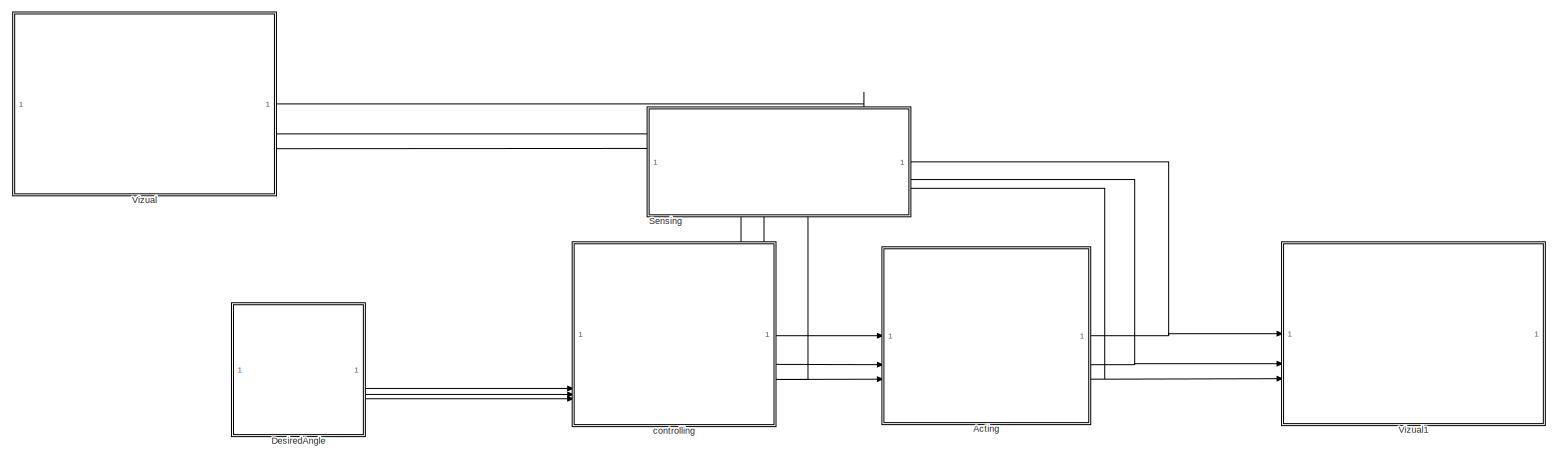
[diagram: root canvas - part 1/1, most of the canvas]
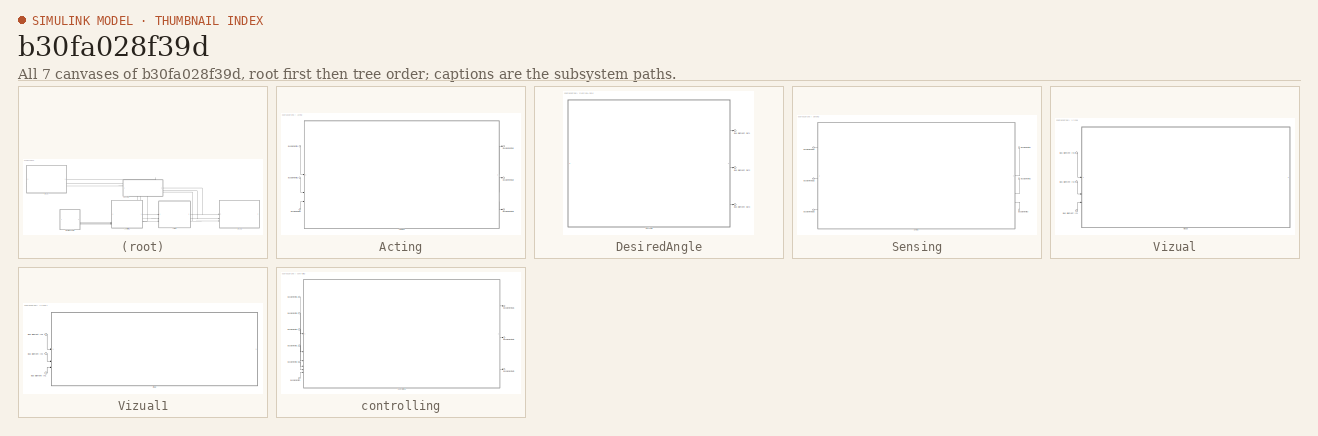
[diagram: thumbnail index - all 7 canvases of the model, root first then tree order]
MODEL slx_b30fa028f39d
KIND model
CONFIG AbsTol = auto
CONFIG EnableMultiTasking = off
CONFIG FixedStep = auto
CONFIG MaxStep = auto
CONFIG MinStep = auto
CONFIG RelTol = 1e-3
CONFIG SampleTimeConstraint = Unconstrained
CONFIG SolverName = VariableStepAuto
CONFIG StartTime = 0.0
CONFIG StopTime = 10
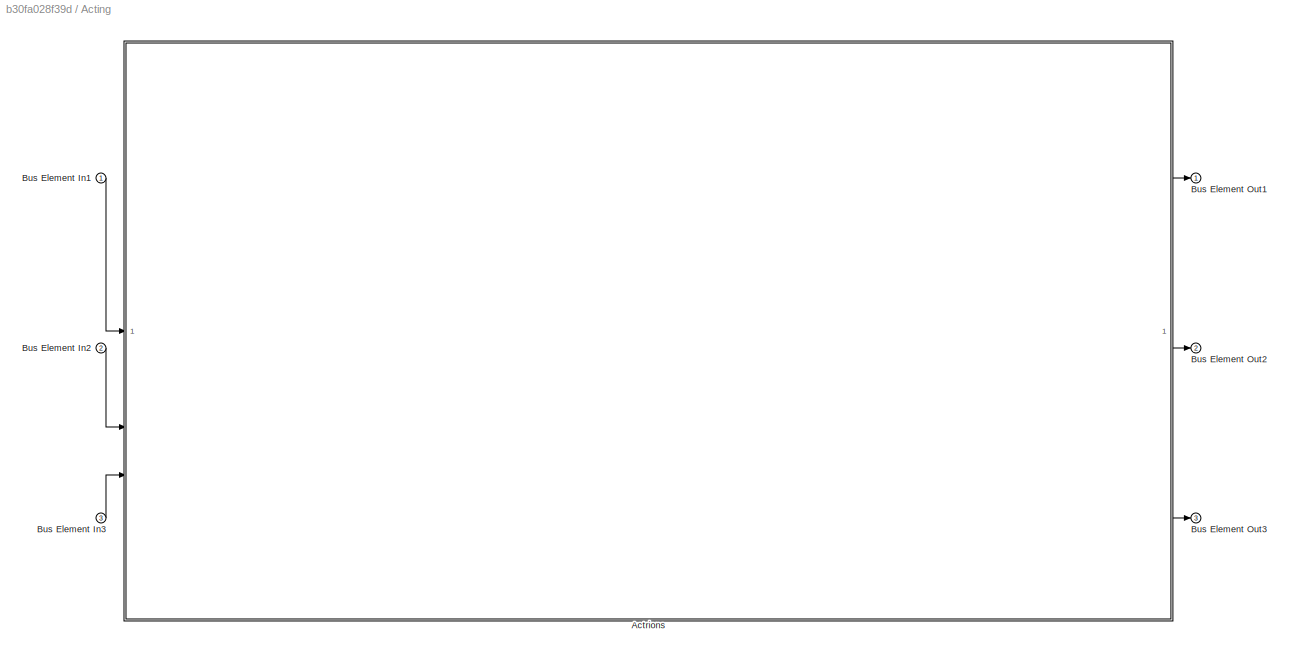
BLOCK [SubSystem] Acting
  PortSchema = {"entries":[{"content":{"headerSize":26,"margin":15,"minimumSpacing":25,"sides":[{"content":{"connectorIds":["In1","In2","In3"]},"type":"ConnectorPlacement.EquallySpacedRectSide","uuid":"8ca612f8-5ab0-4cec-b622-03bd1eeacdc1"},{"content":{"connectorIds":["Out1","Out2","Out3"],"side":"RIGHT"},"type":"ConnectorPlacement.EquallySpacedRectSide","uuid":"b2600449-b2aa-4030-b0dc-e340c84dc783"},{"content":...<+296ch>
BLOCK [ModelReference] Acting/Actrions
  ModelNameDialog = Actrions
  ModelReferenceVersion = 1.2
  PortSchema = {"entries":[{"content":{"headerSize":38,"margin":15,"minimumSpacing":25,"sides":[{"content":{"connectorIds":["In1","In2","In3"]},"type":"ConnectorPlacement.EquallySpacedRectSide","uuid":"8ca612f8-5ab0-4cec-b622-03bd1eeacdc1"},{"content":{"connectorIds":["Out1","Out2","Out3"],"side":"RIGHT"},"type":"ConnectorPlacement.EquallySpacedRectSide","uuid":"b2600449-b2aa-4030-b0dc-e340c84dc783"},{"content":...<+296ch>
BLOCK [Inport] Acting/Bus Element In1
BLOCK [Inport] Acting/Bus Element In2
  Port = 2
BLOCK [Inport] Acting/Bus Element In3
  Port = 3
BLOCK [Outport] Acting/Bus Element Out1
BLOCK [Outport] Acting/Bus Element Out2
  Port = 2
BLOCK [Outport] Acting/Bus Element Out3
  Port = 3
BLOCK [SubSystem] DesiredAngle
  PortSchema = {"entries":[{"content":{"headerSize":26,"margin":15,"minimumSpacing":25,"sides":[{"content":{},"type":"ConnectorPlacement.EquallySpacedRectSide","uuid":"8ca612f8-5ab0-4cec-b622-03bd1eeacdc1"},{"content":{"connectorIds":["Out1","Out2","Out3"],"side":"RIGHT"},"type":"ConnectorPlacement.EquallySpacedRectSide","uuid":"b2600449-b2aa-4030-b0dc-e340c84dc783"},{"content":{"side":"TOP"},"type":"ConnectorPl...<+262ch>
BLOCK [Outport] DesiredAngle/Bus Element Out1
BLOCK [Outport] DesiredAngle/Bus Element Out2
  Port = 2
BLOCK [Outport] DesiredAngle/Bus Element Out3
  Port = 3
BLOCK [ModelReference] DesiredAngle/DesAngle
  ModelNameDialog = DesAngle
  ModelReferenceVersion = 1.1
  PortSchema = {"entries":[{"content":{"headerSize":38,"margin":15,"minimumSpacing":25,"sides":[{"content":{},"type":"ConnectorPlacement.EquallySpacedRectSide","uuid":"8ca612f8-5ab0-4cec-b622-03bd1eeacdc1"},{"content":{"connectorIds":["Out1","Out2","Out3"],"side":"RIGHT"},"type":"ConnectorPlacement.EquallySpacedRectSide","uuid":"b2600449-b2aa-4030-b0dc-e340c84dc783"},{"content":{"side":"TOP"},"type":"ConnectorPl...<+262ch>
BLOCK [SubSystem] Sensing
  PortSchema = {"entries":[{"content":{"headerSize":26,"margin":15,"minimumSpacing":25,"sides":[{"content":{"connectorIds":["Out1","Out2","Out3"]},"type":"ConnectorPlacement.EquallySpacedRectSide","uuid":"8ca612f8-5ab0-4cec-b622-03bd1eeacdc1"},{"content":{"connectorIds":["In1","In2","In3"],"side":"RIGHT"},"type":"ConnectorPlacement.EquallySpacedRectSide","uuid":"b2600449-b2aa-4030-b0dc-e340c84dc783"},{"content":...<+296ch>
BLOCK [Inport] Sensing/Bus Element In1
BLOCK [Inport] Sensing/Bus Element In2
  Port = 2
BLOCK [Inport] Sensing/Bus Element In3
  Port = 3
BLOCK [Outport] Sensing/Bus Element Out1
BLOCK [Outport] Sensing/Bus Element Out2
  Port = 2
BLOCK [Outport] Sensing/Bus Element Out3
  Port = 3
BLOCK [ModelReference] Sensing/Sneign
  ModelNameDialog = Sneign
  ModelReferenceVersion = 1.3
  PortSchema = {"entries":[{"content":{"headerSize":38,"margin":15,"minimumSpacing":25,"sides":[{"content":{"connectorIds":["Out2","Out3","Out1"]},"type":"ConnectorPlacement.EquallySpacedRectSide","uuid":"8ca612f8-5ab0-4cec-b622-03bd1eeacdc1"},{"content":{"connectorIds":["In1","In2","In3"],"side":"RIGHT"},"type":"ConnectorPlacement.EquallySpacedRectSide","uuid":"b2600449-b2aa-4030-b0dc-e340c84dc783"},{"content":...<+422ch>
BLOCK [SubSystem] Vizual
  PortSchema = {"entries":[{"content":{"headerSize":26,"margin":15,"minimumSpacing":25,"sides":[{"content":{},"type":"ConnectorPlacement.EquallySpacedRectSide","uuid":"8ca612f8-5ab0-4cec-b622-03bd1eeacdc1"},{"content":{"connectorIds":["In1","In2","In3"],"side":"RIGHT"},"type":"ConnectorPlacement.EquallySpacedRectSide","uuid":"b2600449-b2aa-4030-b0dc-e340c84dc783"},{"content":{"side":"TOP"},"type":"ConnectorPlace...<+259ch>
BLOCK [Inport] Vizual/Bus Element In1
  Port = 3
BLOCK [Inport] Vizual/Bus Element In2
  Port = 2
BLOCK [Inport] Vizual/Bus Element In3
BLOCK [ModelReference] Vizual/Visaul
  ModelNameDialog = Visaul
  ModelReferenceVersion = 1.2
  PortSchema = {"entries":[{"content":{"headerSize":38,"margin":15,"minimumSpacing":25,"sides":[{"content":{"connectorIds":["In1","In2","In3"]},"type":"ConnectorPlacement.EquallySpacedRectSide","uuid":"8ca612f8-5ab0-4cec-b622-03bd1eeacdc1"},{"content":{"side":"RIGHT"},"type":"ConnectorPlacement.EquallySpacedRectSide","uuid":"b2600449-b2aa-4030-b0dc-e340c84dc783"},{"content":{"side":"TOP"},"type":"ConnectorPlacem...<+258ch>
BLOCK [SubSystem] Vizual1
  PortSchema = {"entries":[{"content":{"headerSize":26,"margin":15,"minimumSpacing":25,"sides":[{"content":{"connectorIds":["In1","In2","In3"]},"type":"ConnectorPlacement.EquallySpacedRectSide","uuid":"8ca612f8-5ab0-4cec-b622-03bd1eeacdc1"},{"content":{"side":"RIGHT"},"type":"ConnectorPlacement.EquallySpacedRectSide","uuid":"b2600449-b2aa-4030-b0dc-e340c84dc783"},{"content":{"side":"TOP"},"type":"ConnectorPlacem...<+258ch>
BLOCK [Inport] Vizual1/Bus Element In1
  Port = 3
BLOCK [Inport] Vizual1/Bus Element In2
  Port = 2
BLOCK [Inport] Vizual1/Bus Element In3
BLOCK [ModelReference] Vizual1/Visal
  ModelNameDialog = Visal
  ModelReferenceVersion = 1.2
  PortSchema = {"entries":[{"content":{"headerSize":38,"margin":15,"minimumSpacing":25,"sides":[{"content":{"connectorIds":["In1","In2","In3"]},"type":"ConnectorPlacement.EquallySpacedRectSide","uuid":"8ca612f8-5ab0-4cec-b622-03bd1eeacdc1"},{"content":{"side":"RIGHT"},"type":"ConnectorPlacement.EquallySpacedRectSide","uuid":"b2600449-b2aa-4030-b0dc-e340c84dc783"},{"content":{"side":"TOP"},"type":"ConnectorPlacem...<+258ch>
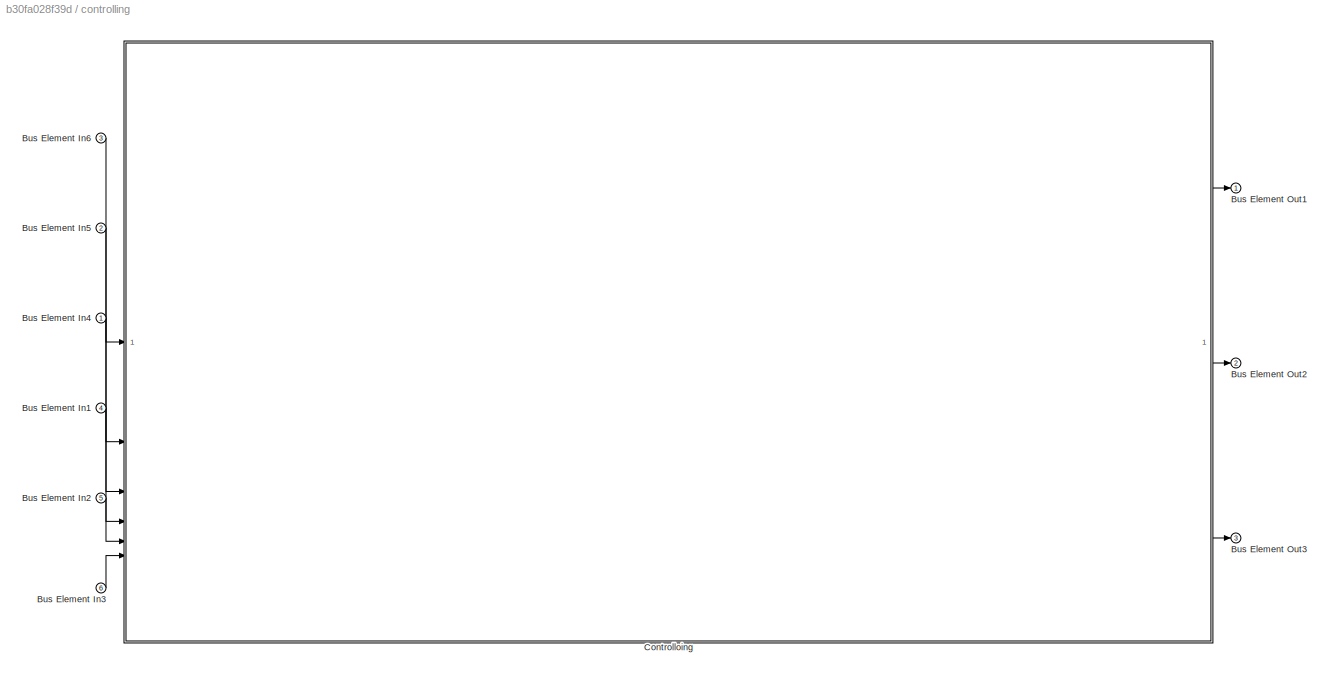
BLOCK [SubSystem] controlling
  PortSchema = {"entries":[{"content":{"headerSize":26,"margin":15,"minimumSpacing":25,"sides":[{"content":{"connectorIds":["In3","In2","In1","In4","In5","In6"]},"type":"ConnectorPlacement.EquallySpacedRectSide","uuid":"8ca612f8-5ab0-4cec-b622-03bd1eeacdc1"},{"content":{"connectorIds":["Out1","Out2","Out3"],"side":"RIGHT"},"type":"ConnectorPlacement.EquallySpacedRectSide","uuid":"b2600449-b2aa-4030-b0dc-e340c84d...<+314ch>
BLOCK [Inport] controlling/Bus Element In1
  Port = 4
BLOCK [Inport] controlling/Bus Element In2
  Port = 5
BLOCK [Inport] controlling/Bus Element In3
  Port = 6
BLOCK [Inport] controlling/Bus Element In4
BLOCK [Inport] controlling/Bus Element In5
  Port = 2
BLOCK [Inport] controlling/Bus Element In6
  Port = 3
BLOCK [Outport] controlling/Bus Element Out1
BLOCK [Outport] controlling/Bus Element Out2
  Port = 2
BLOCK [Outport] controlling/Bus Element Out3
  Port = 3
BLOCK [ModelReference] controlling/Controlloing
  ModelNameDialog = Controlloing
  ModelReferenceVersion = 1.2
  PortSchema = {"entries":[{"content":{"headerSize":38,"margin":15,"minimumSpacing":25,"sides":[{"content":{"connectorIds":["In1","In2","In3","In4","In5","In6"]},"type":"ConnectorPlacement.EquallySpacedRectSide","uuid":"8ca612f8-5ab0-4cec-b622-03bd1eeacdc1"},{"content":{"connectorIds":["Out1","Out2","Out3"],"side":"RIGHT"},"type":"ConnectorPlacement.EquallySpacedRectSide","uuid":"b2600449-b2aa-4030-b0dc-e340c84d...<+314ch>
LINE Acting/Actrions:1 -> Acting/Bus Element Out1:1
LINE Acting/Actrions:2 -> Acting/Bus Element Out2:1
LINE Acting/Actrions:3 -> Acting/Bus Element Out3:1
LINE Acting/Bus Element In1:1 -> Acting/Actrions:1
LINE Acting/Bus Element In2:1 -> Acting/Actrions:2
LINE Acting/Bus Element In3:1 -> Acting/Actrions:3
NET Acting:1 -> Sensing:1, Vizual1:1
NET Acting:2 -> Sensing:2, Vizual1:2
NET Acting:3 -> Sensing:3, Vizual1:3
LINE DesiredAngle/DesAngle:1 -> DesiredAngle/Bus Element Out1:1
LINE DesiredAngle/DesAngle:2 -> DesiredAngle/Bus Element Out2:1
LINE DesiredAngle/DesAngle:3 -> DesiredAngle/Bus Element Out3:1
LINE DesiredAngle:1 -> controlling:4
LINE DesiredAngle:2 -> controlling:5
LINE DesiredAngle:3 -> controlling:6
LINE Sensing/Bus Element In1:1 -> Sensing/Sneign:1
LINE Sensing/Bus Element In2:1 -> Sensing/Sneign:2
LINE Sensing/Bus Element In3:1 -> Sensing/Sneign:3
LINE Sensing/Sneign:1 -> Sensing/Bus Element Out3:1
LINE Sensing/Sneign:2 -> Sensing/Bus Element Out1:1
LINE Sensing/Sneign:3 -> Sensing/Bus Element Out2:1
NET Sensing:1 -> Vizual:1, controlling:3
NET Sensing:2 -> Vizual:2, controlling:2
NET Sensing:3 -> Vizual:3, controlling:1
LINE Vizual/Bus Element In1:1 -> Vizual/Visaul:3
LINE Vizual/Bus Element In2:1 -> Vizual/Visaul:2
LINE Vizual/Bus Element In3:1 -> Vizual/Visaul:1
LINE Vizual1/Bus Element In1:1 -> Vizual1/Visal:3
LINE Vizual1/Bus Element In2:1 -> Vizual1/Visal:2
LINE Vizual1/Bus Element In3:1 -> Vizual1/Visal:1
LINE controlling/Bus Element In1:1 -> controlling/Controlloing:4
LINE controlling/Bus Element In2:1 -> controlling/Controlloing:5
LINE controlling/Bus Element In3:1 -> controlling/Controlloing:6
LINE controlling/Bus Element In4:1 -> controlling/Controlloing:3
LINE controlling/Bus Element In5:1 -> controlling/Controlloing:2
LINE controlling/Bus Element In6:1 -> controlling/Controlloing:1
LINE controlling/Controlloing:1 -> controlling/Bus Element Out1:1
LINE controlling/Controlloing:2 -> controlling/Bus Element Out2:1
LINE controlling/Controlloing:3 -> controlling/Bus Element Out3:1
LINE controlling:1 -> Acting:1
LINE controlling:2 -> Acting:2
LINE controlling:3 -> Acting:3
note: NET lines group one-source signal fan-out (src -> all destinations, sorted); 1:1 wires keep LINE
